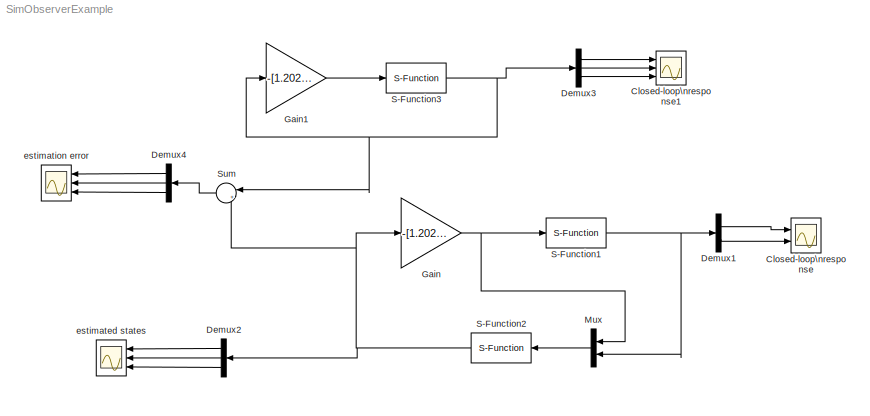
MODEL SimObserverExample
KIND model
BLOCK [Scope] Closed-loop\nresponse
  DataFormat = StructureWithTime
  Floating = off
  NumInputPorts = 2
  Ports = [2]
  SID = 9
  SampleTime = 0
  SaveName = ScopeData1
  YMax = 5~5
  YMin = -5~-5
  ZoomMode = xonly
BLOCK [Scope] Closed-loop\nresponse1
  DataFormat = StructureWithTime
  Floating = off
  NumInputPorts = 3
  Ports = [3]
  SID = 14
  SampleTime = 0
  SaveName = ScopeData2
  YMax = 5~5~5
  YMin = -5~-5~-5
  ZoomMode = xonly
BLOCK [Demux] Demux1
  DisplayOption = bar
  Outputs = 2
  Ports = [1, 2]
  SID = 8
BLOCK [Demux] Demux2
  DisplayOption = bar
  Outputs = 3
  Ports = [1, 3]
  SID = 13
BLOCK [Demux] Demux3
  DisplayOption = bar
  Outputs = 3
  Ports = [1, 3]
  SID = 15
BLOCK [Demux] Demux4
  DisplayOption = bar
  Outputs = 3
  Ports = [1, 3]
  SID = 19
BLOCK [Gain] Gain
  Gain = -[1.2022,0.7434,-5.6941;0.7177,0.3999,-3.1285]
  Multiplication = Matrix(K*u)
  OutDataTypeStr = Inherit: Inherit via internal rule
  ParamDataTypeStr = Inherit: Inherit via internal rule
  SID = 7
  SaturateOnIntegerOverflow = off
BLOCK [Gain] Gain1
  Gain = -[1.2022,0.7434,-5.6941;0.7177,0.3999,-3.1285]
  Multiplication = Matrix(K*u)
  OutDataTypeStr = Inherit: Inherit via internal rule
  ParamDataTypeStr = Inherit: Inherit via internal rule
  SID = 16
  SaturateOnIntegerOverflow = off
BLOCK [Mux] Mux
  DisplayOption = bar
  Inputs = 2
  Ports = [2, 1]
  SID = 11
BLOCK [S-Function] S-Function1
  EnableBusSupport = off
  FunctionName = sfunc_obsv
  Ports = [1, 1]
  SID = 5
BLOCK [S-Function] S-Function2
  EnableBusSupport = off
  FunctionName = observer
  Ports = [1, 1]
  SID = 10
BLOCK [S-Function] S-Function3
  EnableBusSupport = off
  FunctionName = sfunc
  Ports = [1, 1]
  SID = 17
BLOCK [Sum] Sum
  IconShape = round
  InputSameDT = off
  Inputs = |+-
  OutDataTypeStr = Inherit: Inherit via internal rule
  Ports = [2, 1]
  SID = 18
  SaturateOnIntegerOverflow = off
BLOCK [Scope] estimated states
  DataFormat = StructureWithTime
  Floating = off
  NumInputPorts = 3
  Ports = [3]
  SID = 12
  SampleTime = 0
  YMax = 5~5~5
  YMin = -5~-5~-5
  ZoomMode = xonly
BLOCK [Scope] estimation error
  DataFormat = StructureWithTime
  Floating = off
  NumInputPorts = 3
  Ports = [3]
  SID = 20
  SampleTime = 0
  SaveName = ScopeData3
  YMax = 5~5~5
  YMin = -5~-5~-5
  ZoomMode = yonly
LINE Demux1:1 -> Closed-loop\nresponse:1
LINE Demux1:2 -> Closed-loop\nresponse:2
LINE Demux2:1 -> estimated states:1
LINE Demux2:2 -> estimated states:2
LINE Demux2:3 -> estimated states:3
LINE Demux3:1 -> Closed-loop\nresponse1:1
LINE Demux3:2 -> Closed-loop\nresponse1:2
LINE Demux3:3 -> Closed-loop\nresponse1:3
LINE Demux4:1 -> estimation error:1
LINE Demux4:2 -> estimation error:2
LINE Demux4:3 -> estimation error:3
LINE Gain1:1 -> S-Function3:1
NET Gain:1 -> Mux:1, S-Function1:1
LINE Mux:1 -> S-Function2:1
NET S-Function1:1 -> Demux1:1, Mux:2
NET S-Function2:1 -> Demux2:1, Gain:1, Sum:2
NET S-Function3:1 -> Demux3:1, Gain1:1, Sum:1
LINE Sum:1 -> Demux4:1
note: NET lines group one-source signal fan-out (src -> all destinations, sorted); 1:1 wires keep LINE
